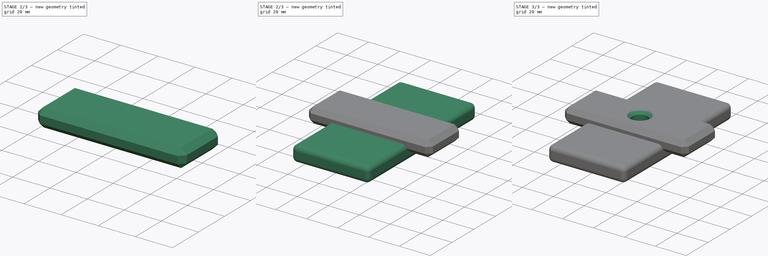
[diagram: build sequence overview — one tinted view per stage of 3, left to right]
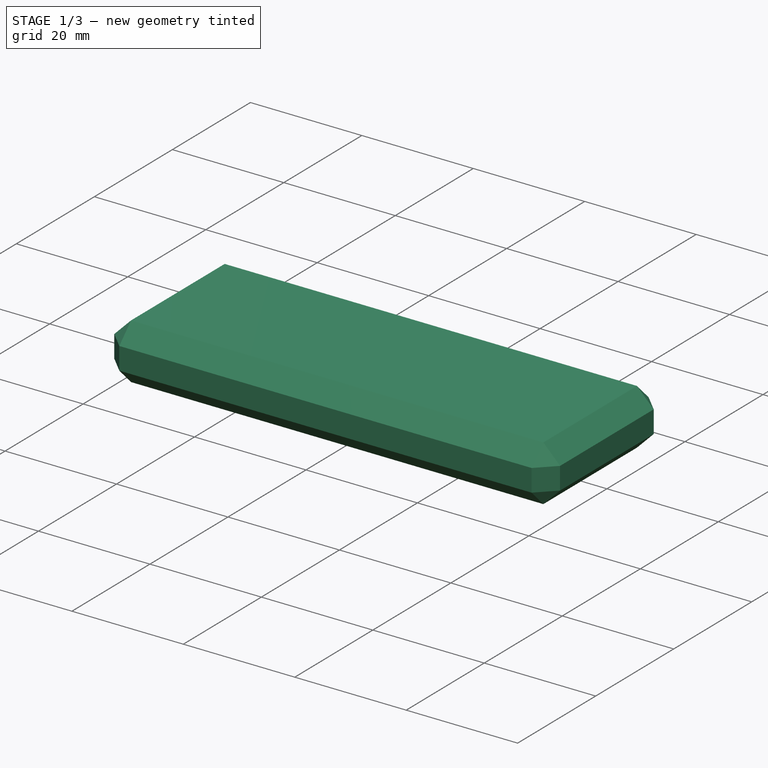
[diagram: stage 1 of 3 — iso view after this stage's code; geometry added in this stage tinted green]
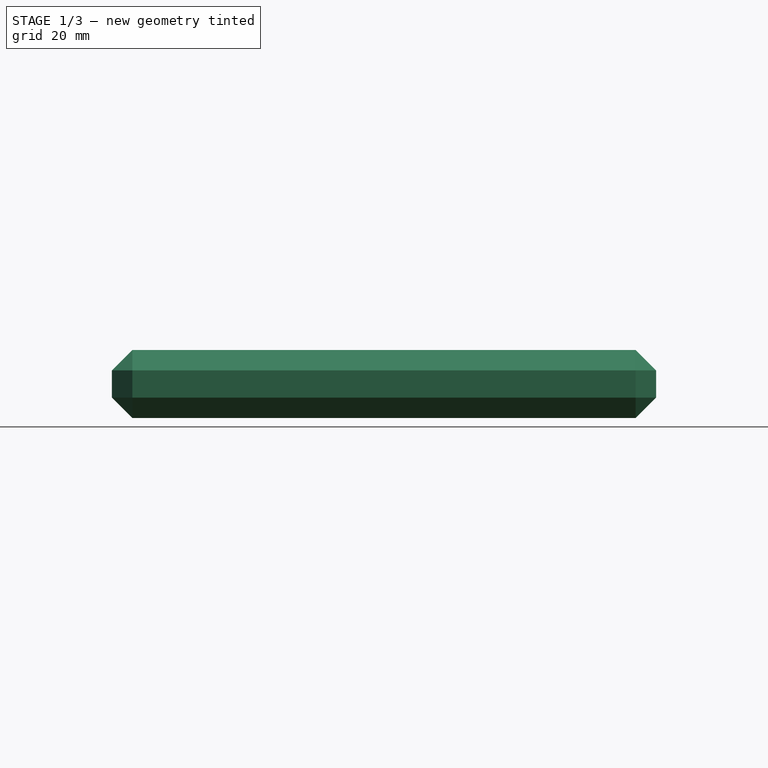
[diagram: stage 1 of 3 — front view after this stage's code; geometry added in this stage tinted green]
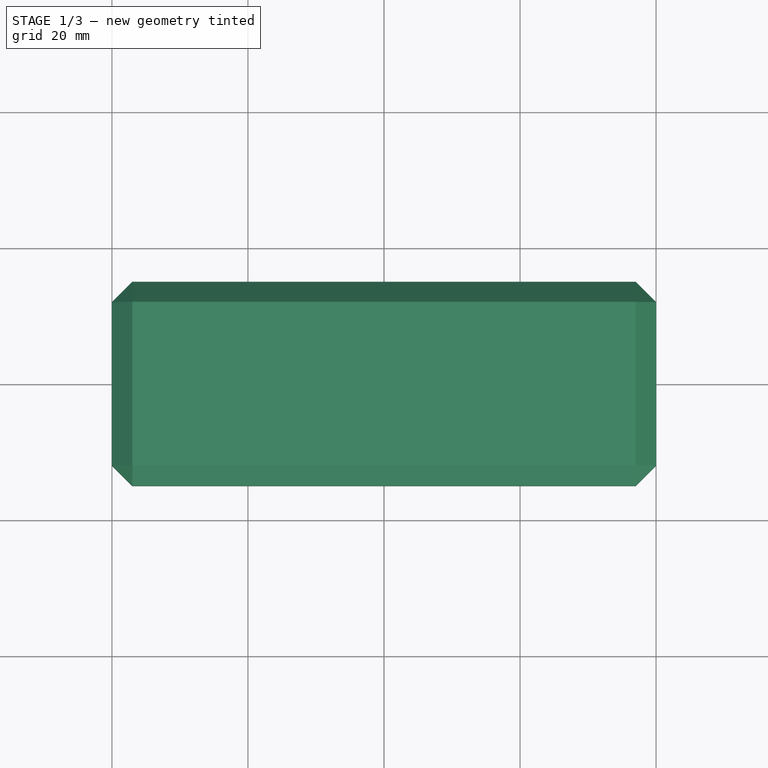
[diagram: stage 1 of 3 — top view after this stage's code; geometry added in this stage tinted green]
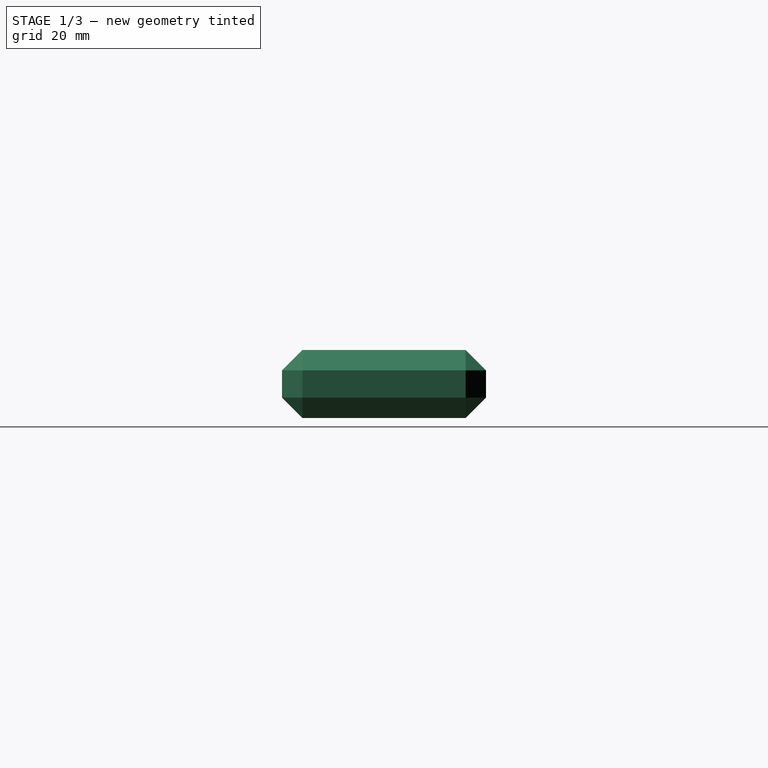
[diagram: stage 1 of 3 — right view after this stage's code; geometry added in this stage tinted green]
FCSTD DOCUMENT  (FreeCAD 0.16R6710 (Git))
Label: patstest
License: All rights reserved
LicenseURL: http://en.wikipedia.org/wiki/All_rights_reserved
objects: Sketcher::SketchObject×3, PartDesign::Pad×2, PartDesign::Chamfer×2, PartDesign::Fillet×1, Part::MultiFuse×1, PartDesign::Pocket×1
note: 13 computed .brp shape members not serialized (recipe doc carries the construction recipe); baked Part::Feature solids carry a one-line shape summary decoded from their .brp

FEATURE [Sketcher::SketchObject] Sketch001
  Placement = pos=(0,0,5) rot=(0,0,1;1.5708rad)
  sketch-geometry (4):
    g0: LineSegment StartX=-15 StartY=40 StartZ=0 EndX=15 EndY=40 EndZ=0
    g1: LineSegment StartX=15 StartY=40 StartZ=0 EndX=15 EndY=-40 EndZ=0
    g2: LineSegment StartX=15 StartY=-40 StartZ=0 EndX=-15 EndY=-40 EndZ=0
    g3: LineSegment StartX=-15 StartY=-40 StartZ=0 EndX=-15 EndY=40 EndZ=0
  constraints (12):
    c: Coincident(g0,g1)
    c: Coincident(g1,g2)
    c: Coincident(g2,g3)
    c: Coincident(g3,g0)
    c: Horizontal(g0)
    c: Horizontal(g2)
    c: Vertical(g1)
    c: Vertical(g3)
    c: Symmetric(g0,g0,g-2)
    c: Symmetric(g0,g2,g-1)
    c: DistanceX(g0,g0) = 30
    c: DistanceY(g3,g3) = 80
FEATURE [PartDesign::Pad] Pad001
  Length = 10
  Length2 = 100
  Placement = pos=(0,0,5) rot=(0,0,1;1.5708rad)
  Sketch = -> Sketch001
  Type = 0
FEATURE [PartDesign::Chamfer] Chamfer
  Base = -> Pad001 [Edge8,Edge1,Edge11,Edge12,Edge5,Edge9,Edge10,Edge3,Edge6,Edge4,Edge7,Edge2]
  Placement = pos=(0,0,5) rot=(0,0,1;1.5708rad)
  Size = 3
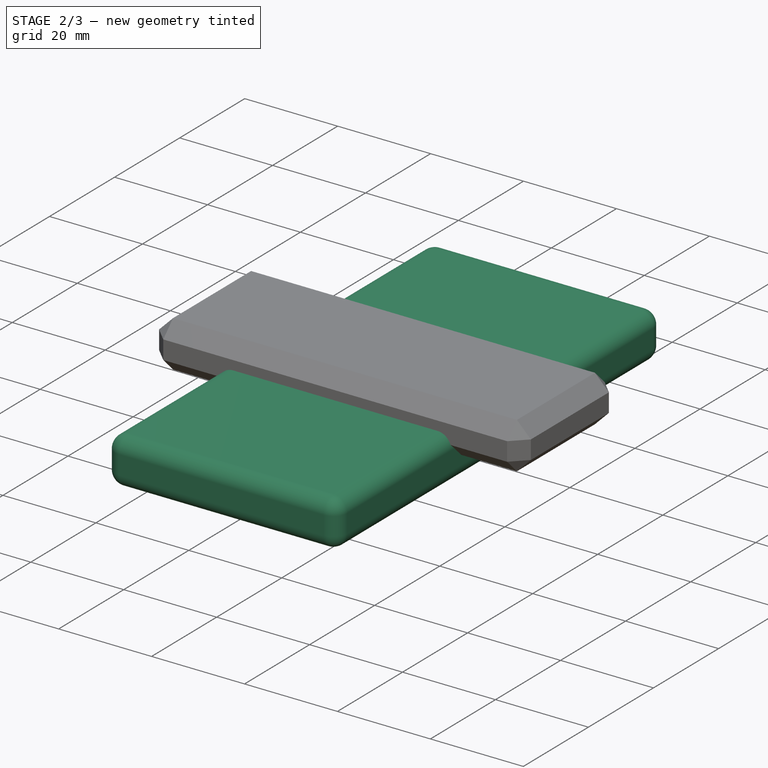
[diagram: stage 2 of 3 — iso view after this stage's code; geometry added in this stage tinted green]
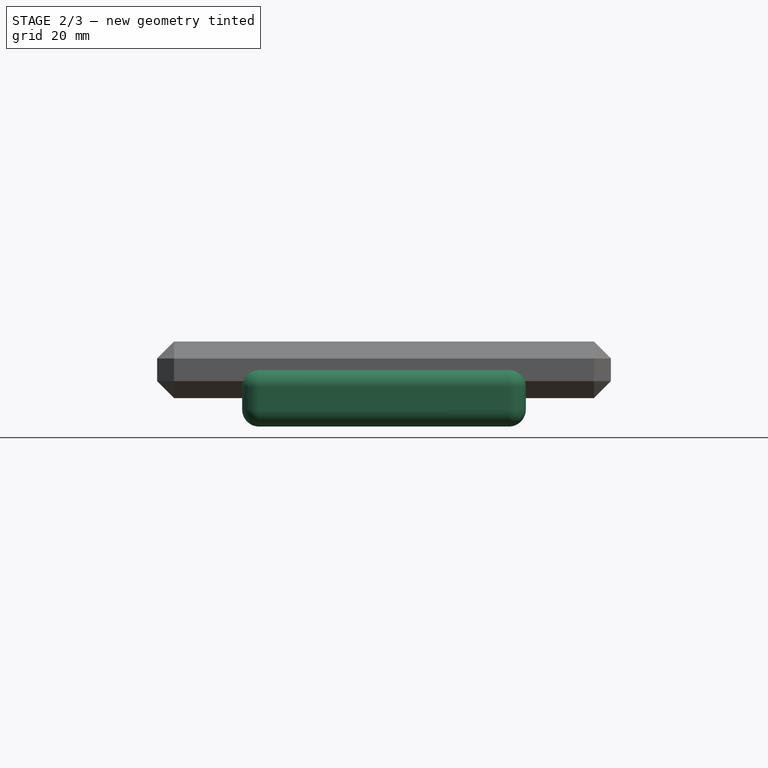
[diagram: stage 2 of 3 — front view after this stage's code; geometry added in this stage tinted green]
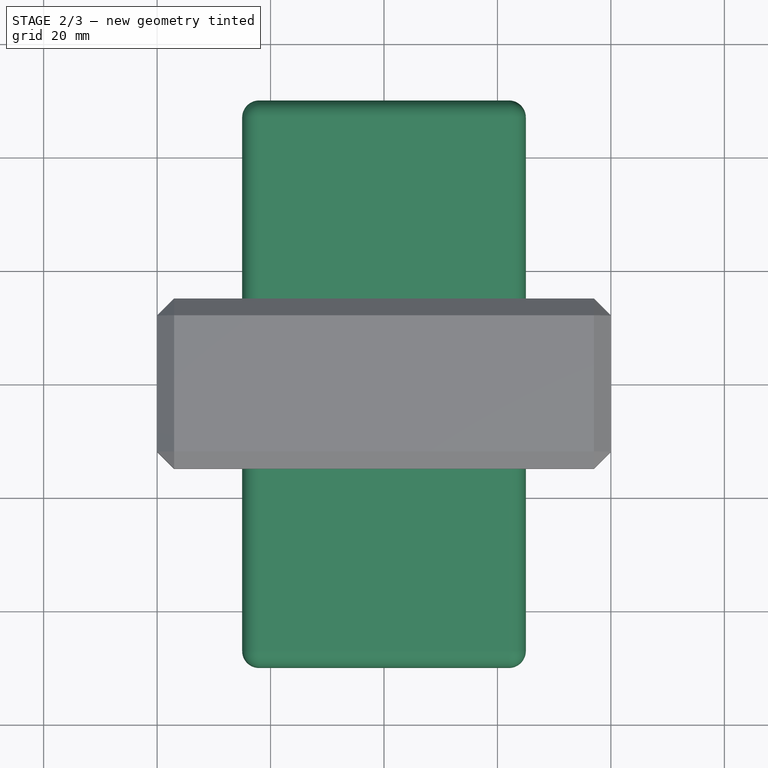
[diagram: stage 2 of 3 — top view after this stage's code; geometry added in this stage tinted green]
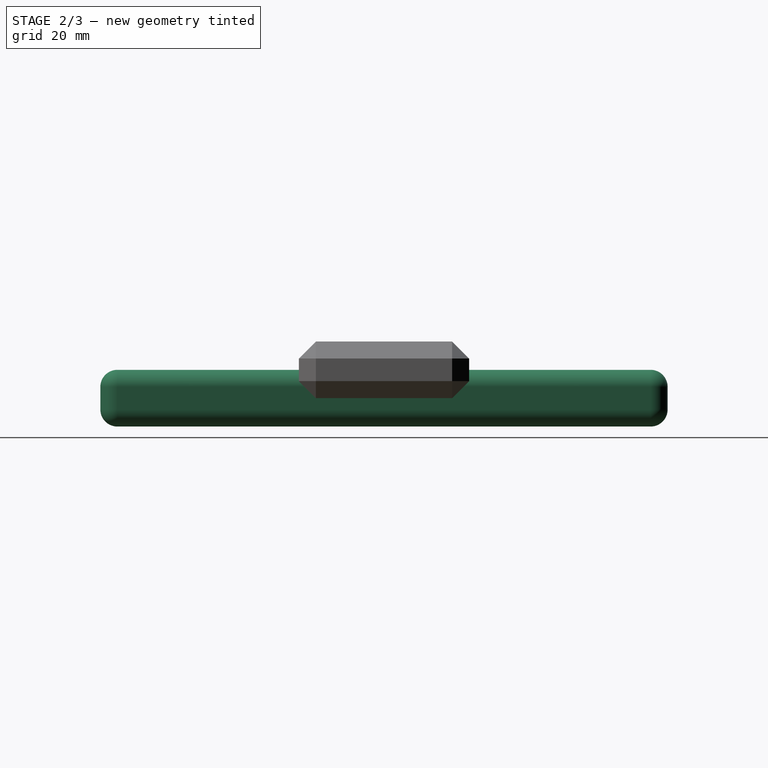
[diagram: stage 2 of 3 — right view after this stage's code; geometry added in this stage tinted green]
FEATURE [Sketcher::SketchObject] Sketch
  sketch-geometry (4):
    g0: LineSegment StartX=-25 StartY=50 StartZ=0 EndX=25 EndY=50 EndZ=0
    g1: LineSegment StartX=25 StartY=50 StartZ=0 EndX=25 EndY=-50 EndZ=0
    g2: LineSegment StartX=25 StartY=-50 StartZ=0 EndX=-25 EndY=-50 EndZ=0
    g3: LineSegment StartX=-25 StartY=-50 StartZ=0 EndX=-25 EndY=50 EndZ=0
  constraints (12):
    c: Coincident(g0,g1)
    c: Coincident(g1,g2)
    c: Coincident(g2,g3)
    c: Coincident(g3,g0)
    c: Horizontal(g0)
    c: Horizontal(g2)
    c: Vertical(g1)
    c: Vertical(g3)
    c: Symmetric(g0,g0,g-2)
    c: Symmetric(g0,g2,g-1)
    c: DistanceX(g0,g0) = 50
    c: DistanceY(g3,g3) = 100
FEATURE [PartDesign::Pad] Pad
  Length = 10
  Length2 = 100
  Sketch = -> Sketch
  Type = 0
FEATURE [PartDesign::Fillet] Fillet
  Base = -> Pad [Edge4,Edge7,Edge10,Edge12,Edge8,Edge1,Edge11,Edge2,Edge3,Edge5,Edge6,Edge9]
  Radius = 3
FEATURE [Part::MultiFuse] Fusion
  Shapes = -> [Fillet,Chamfer]
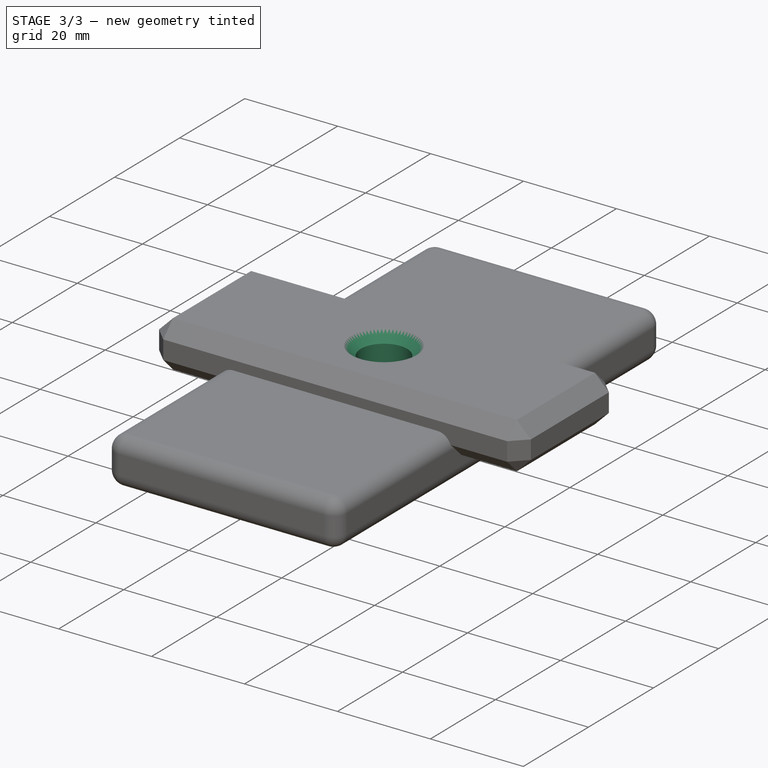
[diagram: stage 3 of 3 — iso view after this stage's code; geometry added in this stage tinted green]
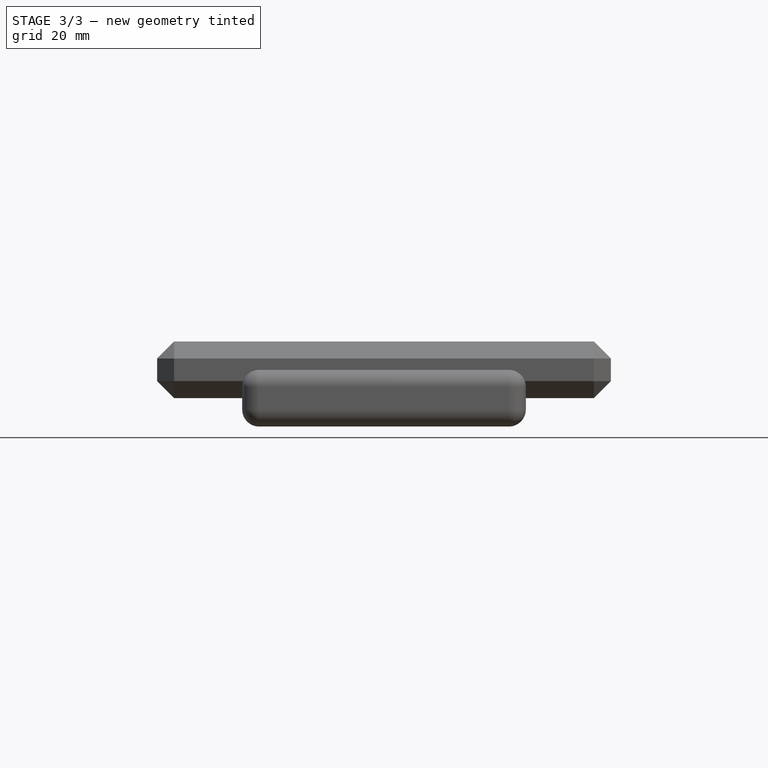
[diagram: stage 3 of 3 — front view after this stage's code; geometry added in this stage tinted green]
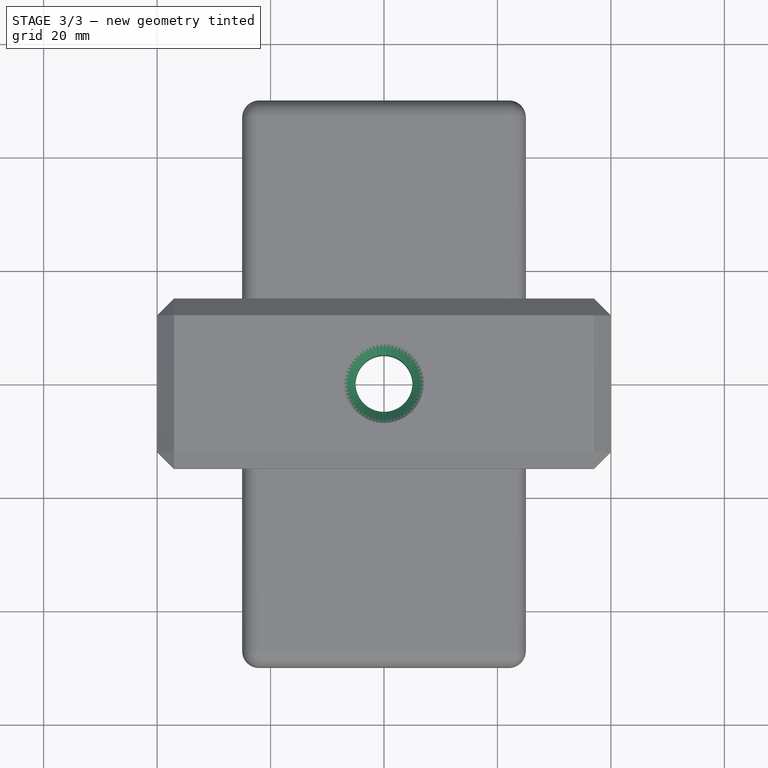
[diagram: stage 3 of 3 — top view after this stage's code; geometry added in this stage tinted green]
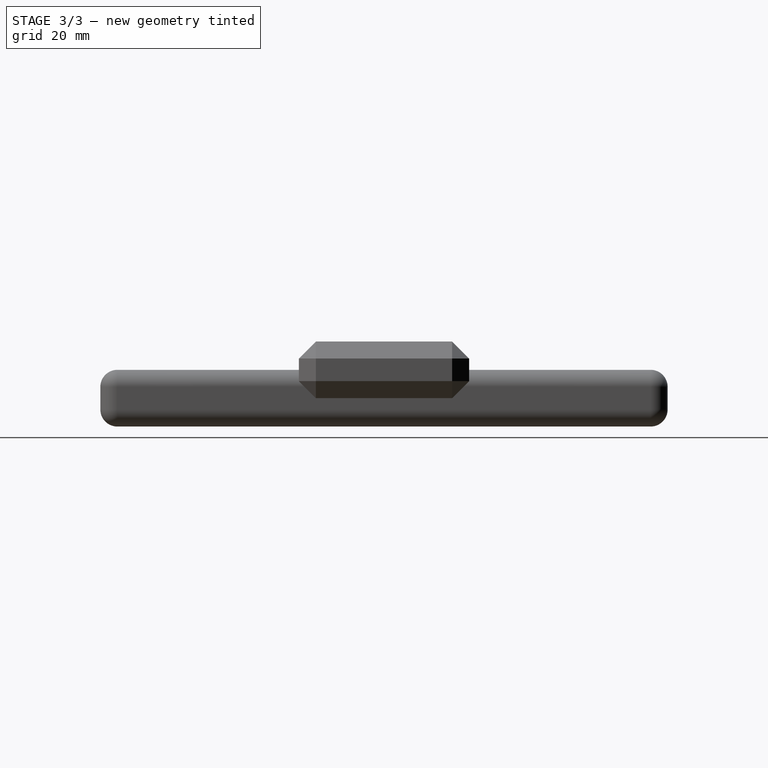
[diagram: stage 3 of 3 — right view after this stage's code; geometry added in this stage tinted green]
FEATURE [Sketcher::SketchObject] Sketch002
  Placement = pos=(0,0,15) rot=(0,0,1;0rad)
  Support = -> Fusion [Face49]
  sketch-geometry (1):
    g0: Circle CenterX=0 CenterY=0 CenterZ=0 NormalX=0 NormalY=0 NormalZ=1 Radius=5
  constraints (2):
    c: Coincident(g0,g-1)
    c: Radius(g0) = 5
FEATURE [PartDesign::Pocket] Pocket
  Length = 5
  Sketch = -> Sketch002
  Type = 1
FEATURE [PartDesign::Chamfer] Chamfer001
  Base = -> Pocket [Edge45,Edge86]
  Size = 2
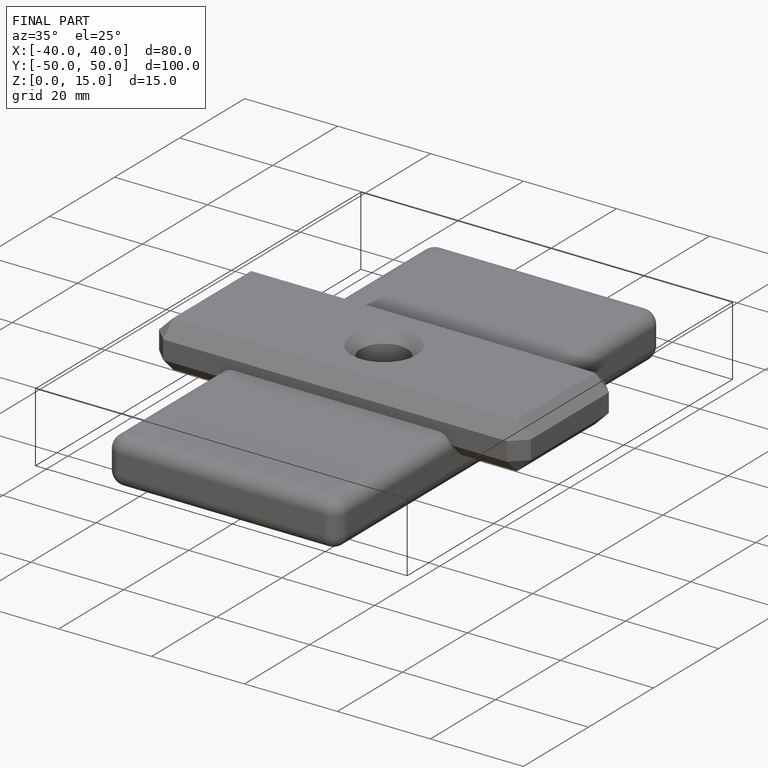
[diagram: finished part — iso view with bounding-box wireframe]
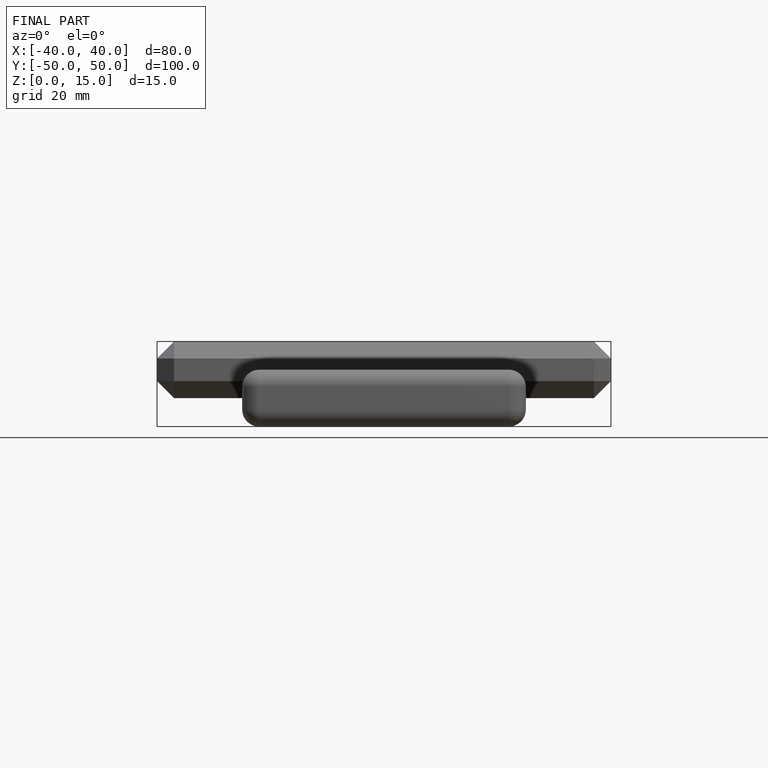
[diagram: finished part — front view with bounding-box wireframe]
